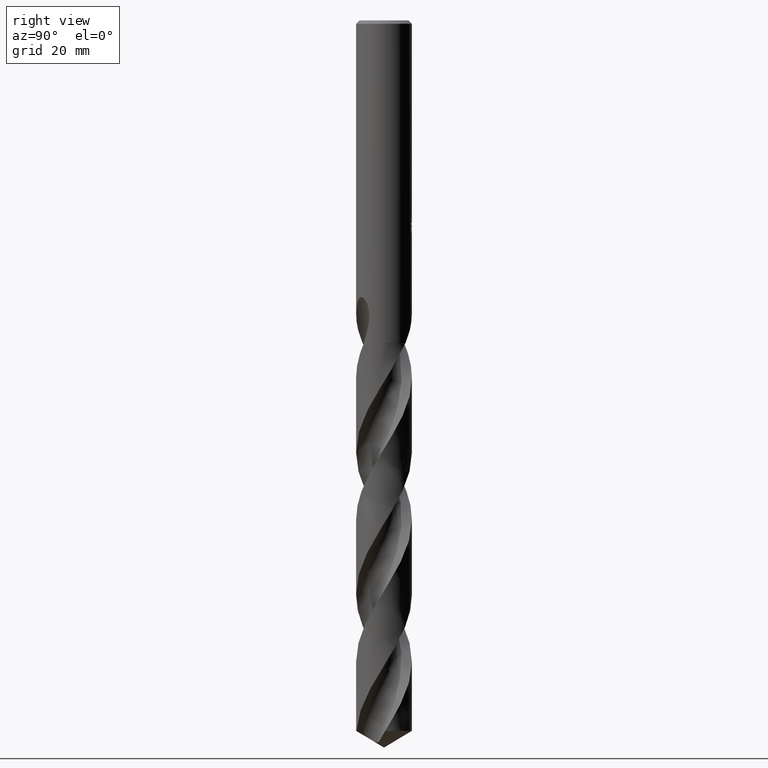
[diagram: clean part render]
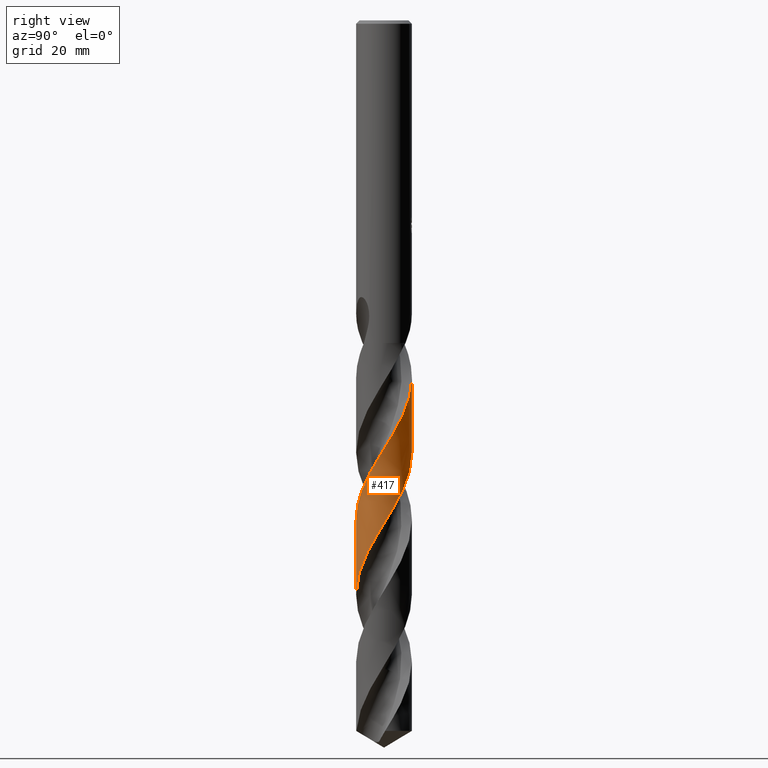
[diagram: same view with one face highlighted and labeled with its STEP entity id]
A machine part, right view. The second image highlights one B-rep face of the part: STEP entity #417.
In plain terms, the highlighted conical surface has half-angle 0 deg.
Its self-contained STEP definition (entity closure, byte-faithful):
#309=EDGE_CURVE('',#323,#607,#811,.T.);
#323=VERTEX_POINT('',#826);
#417=ADVANCED_FACE('',(#927),#928,.T.);
#437=EDGE_CURVE('',#711,#607,#948,.T.);
#463=VERTEX_POINT('',#974);
#479=EDGE_CURVE('',#323,#463,#991,.T.);
#607=VERTEX_POINT('',#1136);
#711=VERTEX_POINT('',#1251);
#717=EDGE_CURVE('',#711,#463,#1257,.T.);
#811=B_SPLINE_CURVE_WITH_KNOTS('',3,(#1424,#1425,#1426,#1427,#1428,#1429,#1430,#1431,#1432,#1433,#1434,#1435,#1436,#1437,#1438,#1439,#1440,#1441,#1442,#1443,#1444,#1445,#1446,#1447,#1448,#1449,#1450,#1451,#1452,#1453,#1454,#1455,#1456,#1457,#1458,#1459,#1460,#1461,#1462,#1463,#1464,#1465,#1466,#1467,#1468,#1469,#1470,#1471,#1472,#1473,#1474,#1475,#1476,#1477,#1478,#1479,#1480,#1481,#1482,#1483,#1484,#1485,#1486,#1487,#1488,#1489,#1490,#1491,#1492,#1493,#1494,#1495,#1496,#1497,#1498,#1499,#1500,#1501,#1502,#1503,#1504,#1505,#1506,#1507,#1508,#1509,#1510,#1511,#1512,#1513,#1514,#1515,#1516,#1517,#1518,#1519,#1520,#1521,#1522,#1523,#1524,#1525,#1526,#1527,#1528,#1529,#1530,#1531,#1532,#1533,#1534,#1535,#1536,#1537,#1538,#1539,#1540,#1541,#1542,#1543,#1544,#1545,#1546,#1547,#1548,#1549,#1550,#1551,#1552,#1553,#1554,#1555,#1556,#1557,#1558,#1559,#1560,#1561,#1562,#1563,#1564,#1565,#1566,#1567,#1568,#1569,#1570,#1571,#1572,#1573,#1574,#1575),.UNSPECIFIED.,.F.,.F.,(4,2,2,2,2,2,2,2,2,2,2,2,2,2,2,2,2,2,2,2,2,2,2,2,2,2,2,2,2,2,2,2,2,2,2,2,2,2,2,2,2,2,2,2,2,2,2,2,2,2,2,2,2,2,2,2,2,2,2,2,2,2,2,2,2,2,2,2,2,2,2,2,2,2,2,4),(0.0,0.960408362309244,1.39759721864667,2.27783749510246,4.51524154318994,4.62385949829618,5.94673917332242,6.69610911619435,8.04464943035086,9.56424718894694,10.4527289387482,11.8565146737352,13.3807408083533,15.0248445670823,15.8692909248996,17.2672440310856,18.7491550945747,20.5111432307048,21.120714162506,22.4126028986105,23.2689170842472,24.027175523639,25.4250171250592,26.8780999538992,28.6654427285291,29.4465005293518,30.8010946350461,32.1592592986914,33.5144767879354,34.1949060844451,34.8683806297485,36.2232538301462,36.9034672476892,37.5768162894365,38.9312266192759,39.6113586491922,40.284888259989,41.6389876894984,42.3191390554246,42.9930538474447,44.3473157661512,45.0274825531799,45.7124263303254,47.0793760404422,48.6098738556261,50.3985053490137,51.2880585574757,53.0758575148998,53.9671988955407,55.2642734478488,56.7720048097506,58.5618717910034,59.4106889637535,60.6076042544218,62.2272314039002,64.0184352935989,64.9096278150301,66.1691882836244,67.7089920471614,69.5015575241006,70.3816685724302,71.9064490680009,72.9917490026651,74.3498487563616,76.5100752991662,78.4377669406595,79.9068401603136,80.7227503340849,81.3266108908028,81.9657463371651,82.2038839210833,82.408293807942,82.6208401869026,82.9780512969669,83.445465786424,84.177967563661),.UNSPECIFIED.);
#826=CARTESIAN_POINT('',(7.98039957494024E-014,-5.09996486740445,-105.014089585092));
#927=FACE_OUTER_BOUND('',#2966,.T.);
#928=CONICAL_SURFACE('',#2967,5.09995,1.40972917285629E-006);
#948=LINE('',#3164,#3165);
#974=CARTESIAN_POINT('',(3.27605773664785E-013,-5.09994558034808,-91.3326983373549));
#991=LINE('',#3393,#3394);
#1136=CARTESIAN_POINT('',(5.90473342704888E-015,5.09992826794847,-79.0520419207766));
#1251=CARTESIAN_POINT('',(-2.11639759926549E-012,5.09990898163801,-65.3711797724176));
#1257=B_SPLINE_CURVE_WITH_KNOTS('',3,(#7038,#7039,#7040,#7041,#7042,#7043,#7044,#7045,#7046,#7047,#7048,#7049,#7050,#7051,#7052,#7053,#7054,#7055,#7056,#7057,#7058,#7059,#7060,#7061,#7062,#7063,#7064,#7065,#7066,#7067,#7068,#7069,#7070,#7071,#7072,#7073,#7074,#7075,#7076,#7077,#7078,#7079,#7080,#7081,#7082,#7083,#7084,#7085,#7086,#7087,#7088,#7089,#7090,#7091,#7092,#7093,#7094,#7095,#7096,#7097,#7098,#7099,#7100,#7101,#7102,#7103,#7104,#7105,#7106,#7107,#7108,#7109,#7110,#7111,#7112,#7113,#7114,#7115,#7116,#7117,#7118,#7119,#7120,#7121,#7122,#7123,#7124,#7125,#7126,#7127,#7128,#7129,#7130,#7131,#7132,#7133,#7134,#7135,#7136,#7137,#7138,#7139,#7140,#7141,#7142,#7143,#7144,#7145,#7146,#7147,#7148,#7149,#7150,#7151,#7152,#7153,#7154,#7155,#7156,#7157,#7158,#7159,#7160,#7161,#7162,#7163,#7164,#7165,#7166,#7167,#7168,#7169,#7170,#7171,#7172,#7173,#7174,#7175,#7176,#7177,#7178,#7179,#7180,#7181,#7182,#7183,#7184,#7185,#7186,#7187,#7188,#7189),.UNSPECIFIED.,.F.,.F.,(4,2,2,2,2,2,2,2,2,2,2,2,2,2,2,2,2,2,2,2,2,2,2,2,2,2,2,2,2,2,2,2,2,2,2,2,2,2,2,2,2,2,2,2,2,2,2,2,2,2,2,2,2,2,2,2,2,2,2,2,2,2,2,2,2,2,2,2,2,2,2,2,2,2,2,4),(0.0,0.122933842633304,0.32471004366978,0.403058327590214,0.438959924958952,0.495304327894615,1.11434990641878,1.28965229345262,1.40309881331718,1.5153046929356,1.6547021180946,1.92898475737128,2.12809138796795,2.63258843625599,3.08564494144712,3.55303162489984,4.02683248122959,4.1151113415218,5.01424501605292,5.88063461727889,10.3219824312516,11.5933709990504,13.3371763735006,13.6116838999569,15.858828044043,16.4753072071047,18.3090391057052,19.0392065170606,21.4197850948664,21.486110879219,23.5017325076618,24.3687292851,26.7420340527579,26.8087513690136,28.7716616566657,30.5098852449122,31.3920103683831,33.1336665375986,34.0147435418028,35.7629014962998,36.643756371741,38.3930465105617,39.2726367839073,39.7121887934436,40.438652724444,41.7102955298365,43.476748385106,45.2132197359857,45.8351685289233,47.1624855774109,48.9241618196387,50.6669327212384,50.9501002019606,53.0662173092134,53.7907750939974,55.0736619947593,56.8388233545058,58.5749593772667,59.1956639665826,61.0277350387309,61.7698377260527,62.9959792856383,64.7640601695597,66.4957306459878,67.1609029017255,68.4724388955669,70.2347802615043,71.6852882332879,72.9501263336201,74.0712701323476,76.0338829899203,76.7738801717956,78.0686731371504,80.0082723999208,80.4946785013518,81.9588664559936),.UNSPECIFIED.);
#1424=CARTESIAN_POINT('',(-0.640138656402275,5.05966624399074,-129.935610842959));
#1425=CARTESIAN_POINT('',(-0.807226730729707,5.03852621466082,-129.663357632879));
#1426=CARTESIAN_POINT('',(-0.973114381198933,5.00912868111576,-129.391578996824));
#1427=CARTESIAN_POINT('',(-1.21187997773961,4.95451347543023,-128.995307603599));
#1428=CARTESIAN_POINT('',(-1.28611760220252,4.93576119567895,-128.871362515314));
#1429=CARTESIAN_POINT('',(-1.50829986331098,4.87429331217863,-128.497602700415));
#1430=CARTESIAN_POINT('',(-1.6546228098313,4.82658045477087,-128.247236533508));
#1431=CARTESIAN_POINT('',(-2.16462585408057,4.6343660232443,-127.362871007323));
#1432=CARTESIAN_POINT('',(-2.51334306192571,4.45485860407349,-126.73423043607));
#1433=CARTESIAN_POINT('',(-2.85378487868103,4.22684470386112,-126.068723473188));
#1434=CARTESIAN_POINT('',(-2.86948284331504,4.21620363517789,-126.03791234036));
#1435=CARTESIAN_POINT('',(-3.07594552931639,4.07455943523508,-125.631326058136));
#1436=CARTESIAN_POINT('',(-3.25785246223577,3.9306678815175,-125.256920980519));
#1437=CARTESIAN_POINT('',(-3.5268206476066,3.68628952972775,-124.669002258434));
#1438=CARTESIAN_POINT('',(-3.6205808479545,3.59423818136636,-124.456591993555));
#1439=CARTESIAN_POINT('',(-3.87269956765877,3.32684794857862,-123.861150239448));
#1440=CARTESIAN_POINT('',(-4.02257440017946,3.14398502910971,-123.477325354269));
#1441=CARTESIAN_POINT('',(-4.31340803084706,2.73410143639576,-122.663257944977));
#1442=CARTESIAN_POINT('',(-4.45021001936303,2.50526139935042,-122.233810776818));
#1443=CARTESIAN_POINT('',(-4.63764978752624,2.12750842286924,-121.55022775116));
#1444=CARTESIAN_POINT('',(-4.70034888856551,1.98514463953759,-121.297485021607));
#1445=CARTESIAN_POINT('',(-4.8451628218616,1.61080197823891,-120.646775481445));
#1446=CARTESIAN_POINT('',(-4.91719798520341,1.37534110151048,-120.24982670138));
#1447=CARTESIAN_POINT('',(-5.03145697926769,0.875020878024545,-119.419052780857));
#1448=CARTESIAN_POINT('',(-5.07034484574368,0.610496093067786,-118.985404640304));
#1449=CARTESIAN_POINT('',(-5.10778858870831,0.0568755387244862,-118.086370637127));
#1450=CARTESIAN_POINT('',(-5.10284814085353,-0.231470868876602,-117.622203186213));
#1451=CARTESIAN_POINT('',(-5.0586258692655,-0.664803910929349,-116.916001309723));
#1452=CARTESIAN_POINT('',(-5.03725147572714,-0.811018890186579,-116.675879107867));
#1453=CARTESIAN_POINT('',(-4.96366491166736,-1.19653578187384,-116.039518996391));
#1454=CARTESIAN_POINT('',(-4.90053069460408,-1.43338651803964,-115.644331628706));
#1455=CARTESIAN_POINT('',(-4.73579186105476,-1.91036265788267,-114.827515902236));
#1456=CARTESIAN_POINT('',(-4.63247283988186,-2.14878020262928,-114.406110364409));
#1457=CARTESIAN_POINT('',(-4.36768890770474,-2.65107106999672,-113.485965459873));
#1458=CARTESIAN_POINT('',(-4.19945186497024,-2.91021509035657,-112.989063031744));
#1459=CARTESIAN_POINT('',(-3.94302717466104,-3.23630228522753,-112.31629497605));
#1460=CARTESIAN_POINT('',(-3.87457355830614,-3.31794651915951,-112.143110901938));
#1461=CARTESIAN_POINT('',(-3.65324015178055,-3.56574410121986,-111.603896774133));
#1462=CARTESIAN_POINT('',(-3.49169955550738,-3.72410259244192,-111.238780681994));
#1463=CARTESIAN_POINT('',(-3.20615412146212,-3.96897745769856,-110.63015102396));
#1464=CARTESIAN_POINT('',(-3.08818128090673,-4.06143562727086,-110.387816044001));
#1465=CARTESIAN_POINT('',(-2.85861317835455,-4.22558989085651,-109.930067134599));
#1466=CARTESIAN_POINT('',(-2.7478631547793,-4.29843499324969,-109.714644410375));
#1467=CARTESIAN_POINT('',(-2.42497990146491,-4.49321025288278,-109.10323295529));
#1468=CARTESIAN_POINT('',(-2.20673302512474,-4.60433748605129,-108.708370213903));
#1469=CARTESIAN_POINT('',(-1.74677723050248,-4.79824758648192,-107.900362301973));
#1470=CARTESIAN_POINT('',(-1.50546969601741,-4.87932474889992,-107.487457970541));
#1471=CARTESIAN_POINT('',(-0.956340548822135,-5.01924028089425,-106.568999908102));
#1472=CARTESIAN_POINT('',(-0.647088662948349,-5.06838619115587,-106.065482253127));
#1473=CARTESIAN_POINT('',(-0.199116184914506,-5.09790527122338,-105.337499992036));
#1474=CARTESIAN_POINT('',(-0.0626780291766202,-5.10140727745255,-105.11570569177));
#1475=CARTESIAN_POINT('',(0.310609739530033,-5.09600105004816,-104.510346485339));
#1476=CARTESIAN_POINT('',(0.546991846553942,-5.07608545344046,-104.127777344922));
#1477=CARTESIAN_POINT('',(1.01620468685932,-5.00334461505156,-103.359292380911));
#1478=CARTESIAN_POINT('',(1.24808609759522,-4.95057149028273,-102.973690633467));
#1479=CARTESIAN_POINT('',(1.70171798477394,-4.81349954979649,-102.205103889037));
#1480=CARTESIAN_POINT('',(1.92340031856292,-4.72930339204642,-101.822627840233));
#1481=CARTESIAN_POINT('',(2.24662413543396,-4.58000333435441,-101.246396592183));
#1482=CARTESIAN_POINT('',(2.35279060348014,-4.52637548536611,-101.053904618664));
#1483=CARTESIAN_POINT('',(2.55994117098521,-4.41249445309645,-100.670401280825));
#1484=CARTESIAN_POINT('',(2.66094112359231,-4.35233426936051,-100.479336284888));
#1485=CARTESIAN_POINT('',(2.95894303017476,-4.16055970790099,-99.904627497182));
#1486=CARTESIAN_POINT('',(3.14897212189026,-4.01867272824196,-99.5221389685739));
#1487=CARTESIAN_POINT('',(3.41874061865428,-3.7862819084915,-98.9458975939054));
#1488=CARTESIAN_POINT('',(3.50608375385043,-3.70554214484278,-98.7534099008425));
#1489=CARTESIAN_POINT('',(3.67397627782894,-3.53910655969127,-98.3698891839985));
#1490=CARTESIAN_POINT('',(3.75455659046504,-3.45350402129349,-98.1787960726738));
#1491=CARTESIAN_POINT('',(3.98833458270063,-3.18727559806471,-97.6041321343332));
#1492=CARTESIAN_POINT('',(4.13202715864044,-2.99867531930041,-97.2216948335634));
#1493=CARTESIAN_POINT('',(4.3275339912731,-2.70113599213585,-96.6455031468381));
#1494=CARTESIAN_POINT('',(4.38933327623628,-2.59949776123466,-96.4530052191135));
#1495=CARTESIAN_POINT('',(4.50506160444793,-2.3932774386262,-96.0693940435722));
#1496=CARTESIAN_POINT('',(4.55903716048282,-2.28878567468166,-95.878215778165));
#1497=CARTESIAN_POINT('',(4.71064372554013,-1.96858221283741,-95.3035418820729));
#1498=CARTESIAN_POINT('',(4.7969646439401,-1.74779478122536,-94.9211634654104));
#1499=CARTESIAN_POINT('',(4.90318322372355,-1.40799552980036,-94.3450328939163));
#1500=CARTESIAN_POINT('',(4.93468011700156,-1.29326733608279,-94.1525246102312));
#1501=CARTESIAN_POINT('',(4.98931083780094,-1.06307210407202,-93.76879500066));
#1502=CARTESIAN_POINT('',(5.0125071825863,-0.947688308126534,-93.5775054600091));
#1503=CARTESIAN_POINT('',(5.07028319992079,-0.598067326712956,-93.0027181995228));
#1504=CARTESIAN_POINT('',(5.09259763213698,-0.362044328682123,-92.620320340738));
#1505=CARTESIAN_POINT('',(5.10133163816552,-0.00613826133362873,-92.0441698323572));
#1506=CARTESIAN_POINT('',(5.10008278175628,0.112818510346134,-91.8516663471048));
#1507=CARTESIAN_POINT('',(5.08925544693316,0.351062478836663,-91.4648226124078));
#1508=CARTESIAN_POINT('',(5.07962634953591,0.470270503709545,-91.270397247242));
#1509=CARTESIAN_POINT('',(5.03822414565799,0.826283538665739,-90.6889401653673));
#1510=CARTESIAN_POINT('',(4.99399972242264,1.06141584105342,-90.303022464704));
#1511=CARTESIAN_POINT('',(4.86548570971631,1.55183171498204,-89.4825857470469));
#1512=CARTESIAN_POINT('',(4.77735180156832,1.80494528887773,-89.0482702389338));
#1513=CARTESIAN_POINT('',(4.54426893964272,2.33595341640884,-88.1083328962405));
#1514=CARTESIAN_POINT('',(4.39266180311014,2.60988482134894,-87.6048972909249));
#1515=CARTESIAN_POINT('',(4.12960144549452,2.99664970679395,-86.8464921118783));
#1516=CARTESIAN_POINT('',(4.03647006463298,3.12096556130286,-86.5940486600387));
#1517=CARTESIAN_POINT('',(3.73929905855859,3.48202722951382,-85.8358407135041));
#1518=CARTESIAN_POINT('',(3.51914826857216,3.70438564843281,-85.3326458353281));
#1519=CARTESIAN_POINT('',(3.16080133355047,4.0053617893444,-84.5740982496215));
#1520=CARTESIAN_POINT('',(3.03716067125119,4.09990469007741,-84.3211887741949));
#1521=CARTESIAN_POINT('',(2.72334095399003,4.31787398953374,-83.7016233082367));
#1522=CARTESIAN_POINT('',(2.5288235141179,4.43461472992925,-83.3356356602794));
#1523=CARTESIAN_POINT('',(2.09246933961273,4.65836639414638,-82.5420501337229));
#1524=CARTESIAN_POINT('',(1.84911612382415,4.76018337315586,-82.1144914679114));
#1525=CARTESIAN_POINT('',(1.30253914038265,4.94067829500263,-81.181398803099));
#1526=CARTESIAN_POINT('',(0.997547859340606,5.01116304585915,-80.6780243256407));
#1527=CARTESIAN_POINT('',(0.541274459242778,5.07328741514666,-79.9314482842032));
#1528=CARTESIAN_POINT('',(0.393821347421842,5.08685672807631,-79.6907883954787));
#1529=CARTESIAN_POINT('',(0.0373376234273952,5.10406489028336,-79.1120036396898));
#1530=CARTESIAN_POINT('',(-0.171809277609005,5.10132192011687,-78.7743470908225));
#1531=CARTESIAN_POINT('',(-0.662579299094316,5.06461560124943,-77.9780180528397));
#1532=CARTESIAN_POINT('',(-0.942356501924616,5.02006389513418,-77.5192292708715));
#1533=CARTESIAN_POINT('',(-1.52019280767138,4.87810281645298,-76.5547432897277));
#1534=CARTESIAN_POINT('',(-1.816083975505,4.77583937904711,-76.0513255799128));
#1535=CARTESIAN_POINT('',(-2.24234657239318,4.58314858096939,-75.2928631510759));
#1536=CARTESIAN_POINT('',(-2.38086233640954,4.51274389941826,-75.0403275436378));
#1537=CARTESIAN_POINT('',(-2.7070990584275,4.32770860292357,-74.4321769682915));
#1538=CARTESIAN_POINT('',(-2.89107721006663,4.20704712329174,-74.0771493632528));
#1539=CARTESIAN_POINT('',(-3.28164489163907,3.91309210517432,-73.2860745249164));
#1540=CARTESIAN_POINT('',(-3.48319885592933,3.73478224365088,-72.8499826457699));
#1541=CARTESIAN_POINT('',(-3.886722195233,3.3166641236685,-71.9081735930523));
#1542=CARTESIAN_POINT('',(-4.0825921649492,3.07233126307228,-71.4046094300989));
#1543=CARTESIAN_POINT('',(-4.33941805539406,2.68367857046019,-70.6492513368315));
#1544=CARTESIAN_POINT('',(-4.41813549872172,2.55201238147071,-70.3999573663676));
#1545=CARTESIAN_POINT('',(-4.61683470973491,2.18280567350893,-69.7202187285464));
#1546=CARTESIAN_POINT('',(-4.72435577236492,1.93916236964558,-69.291225689028));
#1547=CARTESIAN_POINT('',(-4.87508118346014,1.50948652482205,-68.5537744282842));
#1548=CARTESIAN_POINT('',(-4.92769018489976,1.32765736694823,-68.2463887192948));
#1549=CARTESIAN_POINT('',(-5.02306080473266,0.913155387042498,-67.5562388300831));
#1550=CARTESIAN_POINT('',(-5.06004126330158,0.67912429263334,-67.173967961673));
#1551=CARTESIAN_POINT('',(-5.11336639124669,0.0676812308786603,-66.1811186371575));
#1552=CARTESIAN_POINT('',(-5.10435507106555,-0.310013997398056,-65.5722282943715));
#1553=CARTESIAN_POINT('',(-5.00906334912711,-1.01538104650671,-64.4185447285987));
#1554=CARTESIAN_POINT('',(-4.93185155377446,-1.33970235605439,-63.8762195134743));
#1555=CARTESIAN_POINT('',(-4.7434876584042,-1.88987178066858,-62.9336070086666));
#1556=CARTESIAN_POINT('',(-4.64834018945561,-2.11197261308025,-62.5550758047159));
#1557=CARTESIAN_POINT('',(-4.47673029365589,-2.44661849485552,-61.955684276822));
#1558=CARTESIAN_POINT('',(-4.41158484688142,-2.56203084798253,-61.7416392396383));
#1559=CARTESIAN_POINT('',(-4.29243513611382,-2.75560543015868,-61.3652993055422));
#1560=CARTESIAN_POINT('',(-4.23698255606215,-2.84019216250234,-61.1955369578854));
#1561=CARTESIAN_POINT('',(-4.12086309759116,-3.00638676657029,-60.8381418841854));
#1562=CARTESIAN_POINT('',(-4.08597121491669,-3.05309783603263,-60.7247168716061));
#1563=CARTESIAN_POINT('',(-4.01290379584348,-3.14748387439373,-60.512934100497));
#1564=CARTESIAN_POINT('',(-3.99250735136831,-3.17332776605386,-60.4558024223493));
#1565=CARTESIAN_POINT('',(-3.95343620121771,-3.22182698750662,-60.3501661345362));
#1566=CARTESIAN_POINT('',(-3.93494831197427,-3.24438853182365,-60.3016441626448));
#1567=CARTESIAN_POINT('',(-3.89626233935365,-3.29075746469273,-60.2031483095737));
#1568=CARTESIAN_POINT('',(-3.87443162848778,-3.3164638952282,-60.1491510476477));
#1569=CARTESIAN_POINT('',(-3.81468570326389,-3.38532635434892,-60.007345954084));
#1570=CARTESIAN_POINT('',(-3.77535823827301,-3.42919107010711,-59.9197276233683));
#1571=CARTESIAN_POINT('',(-3.67986943933255,-3.53183604445012,-59.7200481347848));
#1572=CARTESIAN_POINT('',(-3.62246077455555,-3.59082577332258,-59.6092101468589));
#1573=CARTESIAN_POINT('',(-3.46586499917328,-3.74360814238077,-59.3296532795626));
#1574=CARTESIAN_POINT('',(-3.36222889344077,-3.83740736945979,-59.1651562826236));
#1575=CARTESIAN_POINT('',(-3.24976189373566,-3.93039790809002,-59.005));
#2966=EDGE_LOOP('',(#7406,#7407,#7408,#7409));
#2967=AXIS2_PLACEMENT_3D('',#7410,#7411,#7412);
#3164=CARTESIAN_POINT('',(-6.25033683024841E-016,5.09995,-94.4678054214797));
#3165=VECTOR('',#7418,1.0);
#3393=CARTESIAN_POINT('',(6.24052551810446E-016,-5.09995,-94.4678054214797));
#3394=VECTOR('',#7436,1.0);
#7038=CARTESIAN_POINT('',(-3.54482373158268,3.66649761951416,-59.005));
#7039=CARTESIAN_POINT('',(-3.53011415829324,3.68071912056169,-59.0405045003704));
#7040=CARTESIAN_POINT('',(-3.51530136380569,3.69486923947561,-59.0760044474323));
#7041=CARTESIAN_POINT('',(-3.47587426375954,3.73207924071667,-59.16972149236));
#7042=CARTESIAN_POINT('',(-3.45108197898188,3.75501944813769,-59.2278681538405));
#7043=CARTESIAN_POINT('',(-3.4161375844715,3.78670866724954,-59.3085550708508));
#7044=CARTESIAN_POINT('',(-3.40631383398324,3.79554821862146,-59.3311027459416));
#7045=CARTESIAN_POINT('',(-3.39190541676146,3.80841170650921,-59.3639679428938));
#7046=CARTESIAN_POINT('',(-3.38736658382091,3.8124493436033,-59.374291510678));
#7047=CARTESIAN_POINT('',(-3.37567398851262,3.82281335894391,-59.4008097109308));
#7048=CARTESIAN_POINT('',(-3.36850457919619,3.82913234962296,-59.4169963272294));
#7049=CARTESIAN_POINT('',(-3.2822045248044,3.90476436344136,-59.6109444801509));
#7050=CARTESIAN_POINT('',(-3.20122793215944,3.97151406517142,-59.7838340889739));
#7051=CARTESIAN_POINT('',(-3.09089956697823,4.05663408210412,-60.0083729671773));
#7052=CARTESIAN_POINT('',(-3.06631108208514,4.07525354684645,-60.0577752833235));
#7053=CARTESIAN_POINT('',(-3.02534701708007,4.10568798418475,-60.1391387609559));
#7054=CARTESIAN_POINT('',(-3.00915454361014,4.11757020245129,-60.1710602844914));
#7055=CARTESIAN_POINT('',(-2.97700128591463,4.14087563431092,-60.2340659243025));
#7056=CARTESIAN_POINT('',(-2.96092911033021,4.15238349503305,-60.2653690297849));
#7057=CARTESIAN_POINT('',(-2.92469681896532,4.17800816801327,-60.3355541898057));
#7058=CARTESIAN_POINT('',(-2.90450545550579,4.19207040225449,-60.374404386368));
#7059=CARTESIAN_POINT('',(-2.84423489335566,4.23340018458717,-60.4897181815638));
#7060=CARTESIAN_POINT('',(-2.80391828684951,4.26020960965001,-60.566006427395));
#7061=CARTESIAN_POINT('',(-2.7337295283173,4.30545711572954,-60.6979719696939));
#7062=CARTESIAN_POINT('',(-2.70362794383417,4.32442876959448,-60.7542943988802));
#7063=CARTESIAN_POINT('',(-2.59583145916452,4.39077490651909,-60.9559337812694));
#7064=CARTESIAN_POINT('',(-2.51766665053466,4.43603590921363,-61.1016467067037));
#7065=CARTESIAN_POINT('',(-2.368109271956,4.51747324535766,-61.3776759566989));
#7066=CARTESIAN_POINT('',(-2.29651511309209,4.55428347539371,-61.5086279650907));
#7067=CARTESIAN_POINT('',(-2.14953155162349,4.62551758436532,-61.7746143502351));
#7068=CARTESIAN_POINT('',(-2.07400206090681,4.65987369990655,-61.9098188079785));
#7069=CARTESIAN_POINT('',(-1.9202570166059,4.72532693410976,-62.1817977705277));
#7070=CARTESIAN_POINT('',(-1.84193441889995,4.75640915350826,-62.318718793671));
#7071=CARTESIAN_POINT('',(-1.74798440704827,4.79101532482967,-62.4809584552158));
#7072=CARTESIAN_POINT('',(-1.73318991172224,4.79638726878158,-62.506450578229));
#7073=CARTESIAN_POINT('',(-1.56745537500457,4.8556988295616,-62.7915124518524));
#7074=CARTESIAN_POINT('',(-1.4140167567894,4.9025837219649,-63.0504467820937));
#7075=CARTESIAN_POINT('',(-1.10877514831245,4.98031680313956,-63.5600058084197));
#7076=CARTESIAN_POINT('',(-0.957473301909608,5.01159593737548,-63.810201813596));
#7077=CARTESIAN_POINT('',(-0.0242150047002889,5.16080528773086,-65.3426684382212));
#7078=CARTESIAN_POINT('',(0.775442694520474,5.10235846931184,-66.6074488457057));
#7079=CARTESIAN_POINT('',(1.74645640202103,4.79690780815913,-68.256393810831));
#7080=CARTESIAN_POINT('',(1.95772725271443,4.71462450977779,-68.6230345100547));
#7081=CARTESIAN_POINT('',(2.44400344639653,4.48691574426994,-69.493539966491));
#7082=CARTESIAN_POINT('',(2.71271912389712,4.32976489745883,-69.9958234516647));
#7083=CARTESIAN_POINT('',(3.00533746157867,4.12061722656517,-70.5783582108828));
#7084=CARTESIAN_POINT('',(3.04471820564374,4.09160491176147,-70.6575755240247));
#7085=CARTESIAN_POINT('',(3.40256652811935,3.8199472403858,-71.3855028397973));
#7086=CARTESIAN_POINT('',(3.69190263681632,3.54110136813905,-72.0325613762083));
#7087=CARTESIAN_POINT('',(4.01524808174207,3.14627277464055,-72.8592039321679));
#7088=CARTESIAN_POINT('',(4.08207762535127,3.05906608627642,-73.0370869680678));
#7089=CARTESIAN_POINT('',(4.33625883370394,2.70421271789364,-73.7445258450606));
#7090=CARTESIAN_POINT('',(4.50057763038404,2.4209110915088,-74.2730191388718));
#7091=CARTESIAN_POINT('',(4.69086893982798,2.00546598923397,-75.0131880446086));
#7092=CARTESIAN_POINT('',(4.74050356023422,1.88514315138436,-75.2238078473469));
#7093=CARTESIAN_POINT('',(4.93211419570083,1.36505951675865,-76.1219861320614));
#7094=CARTESIAN_POINT('',(5.02855644841662,0.950210861211271,-76.8070945168661));
#7095=CARTESIAN_POINT('',(5.07372631995399,0.516417665565749,-77.5135433634387));
#7096=CARTESIAN_POINT('',(5.07490972754982,0.50465581668541,-77.5326917760163));
#7097=CARTESIAN_POINT('',(5.11077309961938,0.135323704051685,-78.133811385751));
#7098=CARTESIAN_POINT('',(5.10761635126885,-0.224955264141071,-78.7149075113007));
#7099=CARTESIAN_POINT('',(5.04899043471402,-0.735428091434509,-79.5472672013837));
#7100=CARTESIAN_POINT('',(5.02439085778958,-0.888058568840955,-79.797346171705));
#7101=CARTESIAN_POINT('',(4.90671205353125,-1.45339340494589,-80.7330936162065));
#7102=CARTESIAN_POINT('',(4.76931993763523,-1.85523669837231,-81.4162506923517));
#7103=CARTESIAN_POINT('',(4.57864405447502,-2.24621293608683,-82.1208365844133));
#7104=CARTESIAN_POINT('',(4.57339334054922,-2.25688448136268,-82.1401007451039));
#7105=CARTESIAN_POINT('',(4.4125158994333,-2.58098453861079,-82.7262294287791));
#7106=CARTESIAN_POINT('',(4.22506196519438,-2.87761098907052,-83.2923649766894));
#7107=CARTESIAN_POINT('',(3.81716204353298,-3.39627023086212,-84.3613174471411));
#7108=CARTESIAN_POINT('',(3.60382310779069,-3.62184637811898,-84.8622512709059));
#7109=CARTESIAN_POINT('',(3.25343464612519,-3.93055207779545,-85.6191696140923));
#7110=CARTESIAN_POINT('',(3.13071413869901,-4.02898598156636,-85.873838903921));
#7111=CARTESIAN_POINT('',(2.75267769854839,-4.30448087732995,-86.6316396917917));
#7112=CARTESIAN_POINT('',(2.48561066606269,-4.46401799100362,-87.133508582655));
#7113=CARTESIAN_POINT('',(2.06419971405899,-4.6661684822716,-87.8911335062962));
#7114=CARTESIAN_POINT('',(1.91954469488725,-4.72751721415626,-88.1455138268587));
#7115=CARTESIAN_POINT('',(1.48003472443196,-4.89040211041942,-88.9049101511676));
#7116=CARTESIAN_POINT('',(1.17854139181855,-4.97167148696873,-89.4086030593028));
#7117=CARTESIAN_POINT('',(0.716910130596336,-5.05174333153233,-90.1680372881308));
#7118=CARTESIAN_POINT('',(0.561055670406508,-5.07142080489966,-90.4223534258704));
#7119=CARTESIAN_POINT('',(0.093636254222247,-5.10861346675462,-91.182010681237));
#7120=CARTESIAN_POINT('',(-0.21879570546555,-5.10477794917058,-91.6859815380238));
#7121=CARTESIAN_POINT('',(-0.684755754705261,-5.05619826019989,-92.4453947120834));
#7122=CARTESIAN_POINT('',(-0.83985474358418,-5.03276226154209,-92.6993598079053));
#7123=CARTESIAN_POINT('',(-1.07051035400662,-4.98694472496387,-93.0803755836059));
#7124=CARTESIAN_POINT('',(-1.14701162908842,-4.9699072773916,-93.2073087937706));
#7125=CARTESIAN_POINT('',(-1.34884430269642,-4.92004809768628,-93.5440740773728));
#7126=CARTESIAN_POINT('',(-1.47333991089567,-4.88421099651408,-93.7537277374398));
#7127=CARTESIAN_POINT('',(-1.81160156997477,-4.77273149904579,-94.3309081266957));
#7128=CARTESIAN_POINT('',(-2.02192397546325,-4.68750520134494,-94.6980415261896));
#7129=CARTESIAN_POINT('',(-2.50920532600779,-4.45112961466952,-95.575634016754));
#7130=CARTESIAN_POINT('',(-2.7791532689995,-4.28776564095168,-96.0843349376563));
#7131=CARTESIAN_POINT('',(-3.2811210178989,-3.91657383323304,-97.0963002004662));
#7132=CARTESIAN_POINT('',(-3.51276064060659,-3.71024653115757,-97.5969470967299));
#7133=CARTESIAN_POINT('',(-3.80006981666901,-3.40313301296392,-98.2781386625514));
#7134=CARTESIAN_POINT('',(-3.87315821192636,-3.31971140656835,-98.4576907596372));
#7135=CARTESIAN_POINT('',(-4.09349289056068,-3.05104090968689,-99.0208177560125));
#7136=CARTESIAN_POINT('',(-4.23062869572111,-2.85785606903315,-99.4040121968393));
#7137=CARTESIAN_POINT('',(-4.51742283720165,-2.38770023561432,-100.296365610779));
#7138=CARTESIAN_POINT('',(-4.65584219432186,-2.10506737476227,-100.803824683414));
#7139=CARTESIAN_POINT('',(-4.877715160158,-1.52117711172497,-101.816306243679));
#7140=CARTESIAN_POINT('',(-4.9613243702215,-1.22125276911722,-102.318705399188));
#7141=CARTESIAN_POINT('',(-5.02618214121761,-0.865825911421494,-102.903900011834));
#7142=CARTESIAN_POINT('',(-5.03450784386654,-0.816022399661257,-102.985674824065));
#7143=CARTESIAN_POINT('',(-5.09877320821127,-0.393068549049716,-103.6788071736));
#7144=CARTESIAN_POINT('',(-5.11388767175967,-0.0148233752236845,-104.288939596306));
#7145=CARTESIAN_POINT('',(-5.0779642050201,0.49053170741264,-105.109597291584));
#7146=CARTESIAN_POINT('',(-5.06390754934876,0.619011795744306,-105.318758997191));
#7147=CARTESIAN_POINT('',(-5.01149650839796,0.973076083247887,-105.898792932916));
#7148=CARTESIAN_POINT('',(-4.96281523547223,1.19685259956272,-106.269262935737));
#7149=CARTESIAN_POINT('',(-4.81184372233823,1.7189838159469,-107.149963304082));
#7150=CARTESIAN_POINT('',(-4.69662247733479,2.0125699441362,-107.658434551873));
#7151=CARTESIAN_POINT('',(-4.41591043104741,2.57006232908955,-108.670210288052));
#7152=CARTESIAN_POINT('',(-4.25180326458417,2.83333134292725,-109.170897005497));
#7153=CARTESIAN_POINT('',(-3.99791122867021,3.1683867436649,-109.851819189442));
#7154=CARTESIAN_POINT('',(-3.92820487458239,3.25440758151222,-110.031065678548));
#7155=CARTESIAN_POINT('',(-3.64195759959591,3.58504903558756,-110.739844043303));
#7156=CARTESIAN_POINT('',(-3.40486290229281,3.810962853107,-111.268324827293));
#7157=CARTESIAN_POINT('',(-3.04358560724634,4.09436830198602,-112.012097072638));
#7158=CARTESIAN_POINT('',(-2.93631091746326,4.17197037457719,-112.226341035516));
#7159=CARTESIAN_POINT('',(-2.64413888362181,4.36647377721312,-112.795124185951));
#7160=CARTESIAN_POINT('',(-2.45451735356326,4.47581451840672,-113.149298702915));
#7161=CARTESIAN_POINT('',(-1.97576303411654,4.7122764353763,-114.014590719164));
#7162=CARTESIAN_POINT('',(-1.68075123911889,4.82537400734324,-114.523932757626));
#7163=CARTESIAN_POINT('',(-1.07993249568247,4.99388309891159,-115.535399605563));
#7164=CARTESIAN_POINT('',(-0.775607943163808,5.05011521034715,-116.034933513706));
#7165=CARTESIAN_POINT('',(-0.349830009968632,5.08935259814001,-116.727517572768));
#7166=CARTESIAN_POINT('',(-0.231348095223665,5.09611250064765,-116.919604639389));
#7167=CARTESIAN_POINT('',(0.1210843309628,5.10390695397702,-117.490891029951));
#7168=CARTESIAN_POINT('',(0.355021570841424,5.09298626445269,-117.869697334317));
#7169=CARTESIAN_POINT('',(0.899638547817935,5.02984065366031,-118.758054954627));
#7170=CARTESIAN_POINT('',(1.20781743174432,4.96485354928708,-119.265868306133));
#7171=CARTESIAN_POINT('',(1.75507980772847,4.79546123080552,-120.194507597911));
#7172=CARTESIAN_POINT('',(1.99604126868835,4.70028157655304,-120.613202263876));
#7173=CARTESIAN_POINT('',(2.43175058520684,4.48858357792058,-121.397898567176));
#7174=CARTESIAN_POINT('',(2.6278949620902,4.3766335521478,-121.762964201214));
#7175=CARTESIAN_POINT('',(2.98262741650849,4.14171399716808,-122.452609745886));
#7176=CARTESIAN_POINT('',(3.14271162156291,4.02159951523252,-122.776413993731));
#7177=CARTESIAN_POINT('',(3.56257166972513,3.66613901144817,-123.667609229026));
#7178=CARTESIAN_POINT('',(3.80572989338549,3.41303680274243,-124.233266092118));
#7179=CARTESIAN_POINT('',(4.10217625679953,3.03306640358877,-125.014438987954));
#7180=CARTESIAN_POINT('',(4.17929089323499,2.92589889192774,-125.228242064897));
#7181=CARTESIAN_POINT('',(4.37969579712178,2.62327105250319,-125.816310095178));
#7182=CARTESIAN_POINT('',(4.49397367215301,2.42228553661287,-126.189873024102));
#7183=CARTESIAN_POINT('',(4.74441310677243,1.90267051222895,-127.124734594162));
#7184=CARTESIAN_POINT('',(4.86254513628683,1.57651357513041,-127.683879775561));
#7185=CARTESIAN_POINT('',(4.96786378633352,1.15665010803404,-128.384950130797));
#7186=CARTESIAN_POINT('',(4.98682088729664,1.07197112579837,-128.525464926046));
#7187=CARTESIAN_POINT('',(5.05413585894983,0.730674368610269,-129.089315943615));
#7188=CARTESIAN_POINT('',(5.08491840457144,0.470957869001697,-129.512352641723));
#7189=CARTESIAN_POINT('',(5.09567368056929,0.210023191941769,-129.935610842959));
#7406=ORIENTED_EDGE('',*,*,#437,.F.);
#7407=ORIENTED_EDGE('',*,*,#717,.T.);
#7408=ORIENTED_EDGE('',*,*,#479,.F.);
#7409=ORIENTED_EDGE('',*,*,#309,.T.);
#7410=CARTESIAN_POINT('',(0.0,0.0,-94.4678054214797));
#7411=DIRECTION('',(0.0,-0.0,-1.0));
#7412=DIRECTION('',(0.0,1.0,0.0));
#7418=DIRECTION('',(-1.726363302248E-022,1.40972917285582E-006,-0.999999999999006));
#7436=DIRECTION('',(-1.726363302248E-022,1.40972917285582E-006,0.999999999999006));